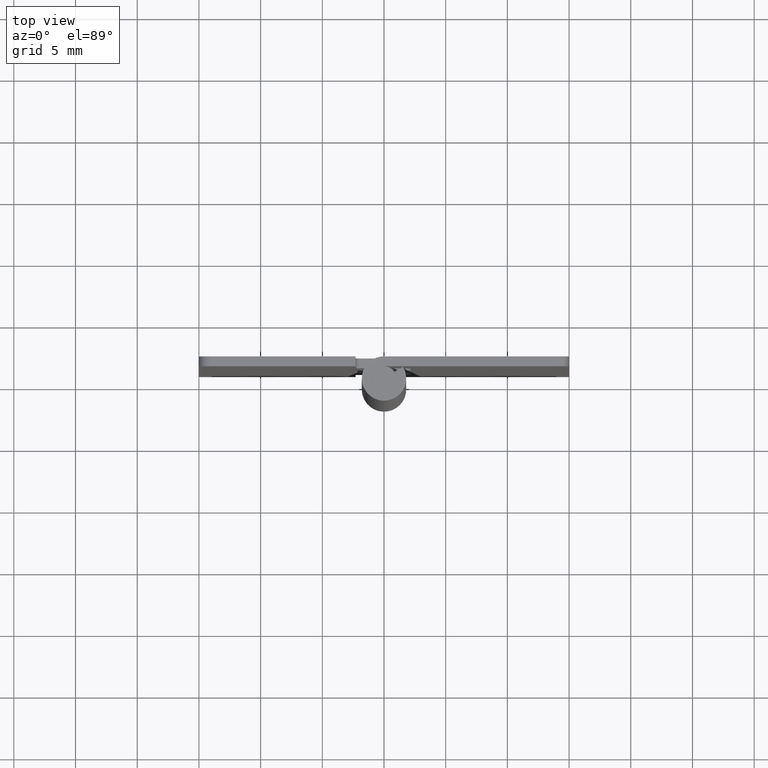
[diagram: clean part render]
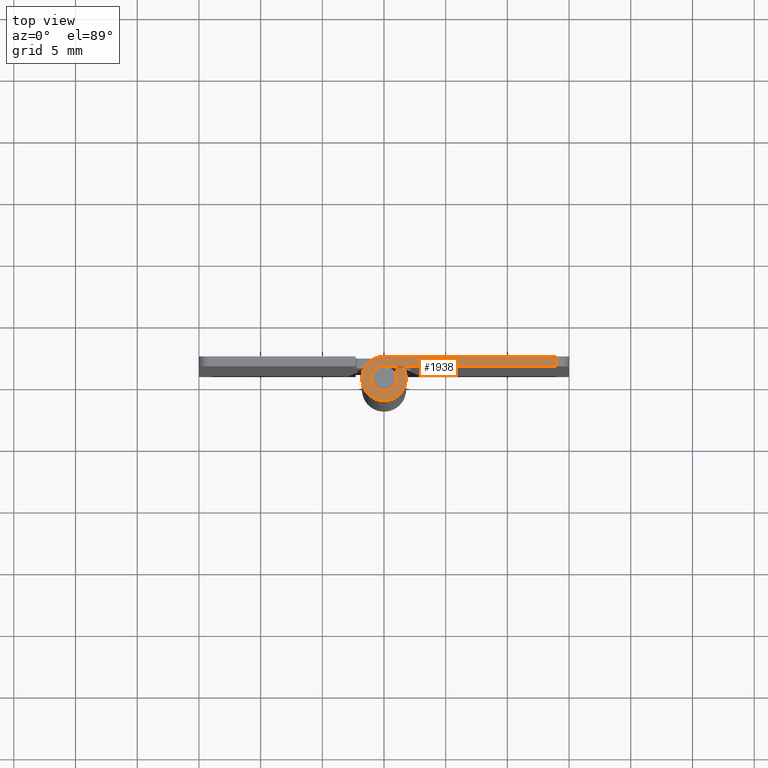
[diagram: same view with one face highlighted and labeled with its STEP entity id]
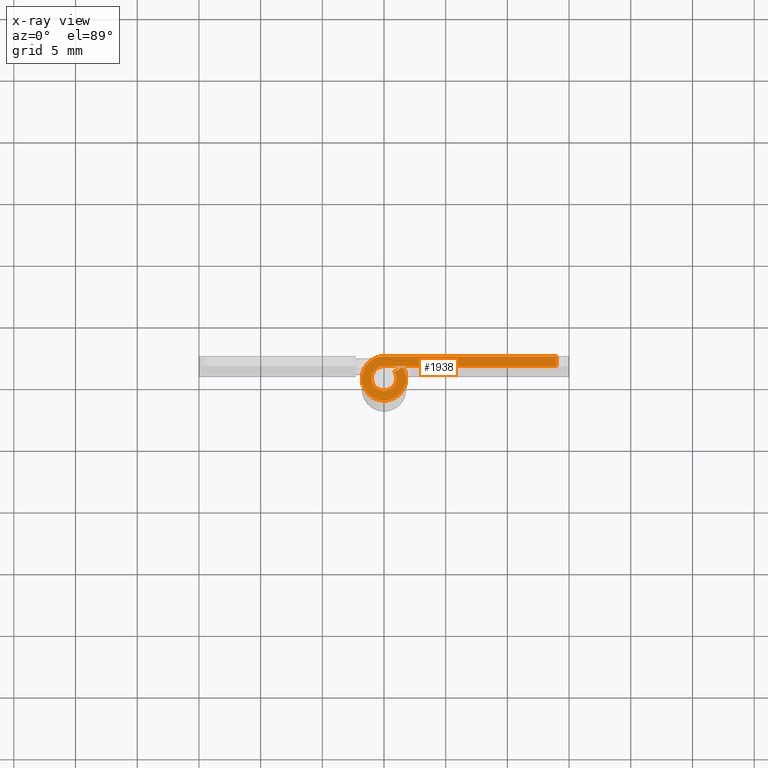
[diagram: x-ray of the same camera — body ghosted, the highlighted face saturated]
A machine part, top view. The second image highlights one B-rep face of the part: STEP entity #1938.
The next image is the same camera in x-ray: the body ghosted, the highlighted face saturated — about 0% of this face is hidden behind the body in this view.
In plain terms, the highlighted face is a freeform B-spline surface patch.
Its self-contained STEP definition (entity closure, byte-faithful):
#1357=CARTESIAN_POINT('',(14.0,1.799999000000000,50.999992999999897));
#1358=VERTEX_POINT('',#1357);
#1374=CARTESIAN_POINT('',(14.0,1.0,50.999992999999897));
#1375=VERTEX_POINT('',#1374);
#1376=CARTESIAN_POINT('',(14.0,1.0,50.999992999999897));
#1377=CARTESIAN_POINT('',(14.0,1.799999000000000,50.999992999999897));
#1378=QUASI_UNIFORM_CURVE('',1,(#1376,#1377),.UNSPECIFIED.,.F.,.U.);
#1379=EDGE_CURVE('',#1375,#1358,#1378,.T.);
#1869=CARTESIAN_POINT('',(-2.589133838442304,-1.979478709255516,50.999992999999897));
#1870=CARTESIAN_POINT('',(14.789206771333980,-1.979478709255516,50.999992999999897));
#1871=CARTESIAN_POINT('',(-2.589133838442304,1.979802805870698,50.999992999999897));
#1872=CARTESIAN_POINT('',(14.789206771333980,1.979802805870698,50.999992999999897));
#1873=B_SPLINE_SURFACE_WITH_KNOTS('',1,1,((#1869,#1871),(#1870,#1872)),.UNSPECIFIED.,.F.,.F.,.U.,(2,2),(2,2),(0.0,17.378340609776281),(0.0,3.959281515126214),.UNSPECIFIED.);
#1874=CARTESIAN_POINT('',(0.0,1.0,50.999992999999897));
#1875=VERTEX_POINT('',#1874);
#1876=CARTESIAN_POINT('',(14.0,1.0,50.999992999999897));
#1877=CARTESIAN_POINT('',(0.0,1.0,50.999992999999897));
#1878=QUASI_UNIFORM_CURVE('',1,(#1876,#1877),.UNSPECIFIED.,.F.,.U.);
#1879=EDGE_CURVE('',#1375,#1875,#1878,.T.);
#1880=ORIENTED_EDGE('',*,*,#1879,.F.);
#1881=ORIENTED_EDGE('',*,*,#1379,.T.);
#1882=CARTESIAN_POINT('',(0.001897366339661,1.799999000000000,50.999992999999897));
#1883=VERTEX_POINT('',#1882);
#1884=CARTESIAN_POINT('',(0.001897366339661,1.799999000000000,50.999992999999897));
#1885=CARTESIAN_POINT('',(14.0,1.799999000000000,50.999992999999897));
#1886=QUASI_UNIFORM_CURVE('',1,(#1884,#1885),.UNSPECIFIED.,.F.,.U.);
#1887=EDGE_CURVE('',#1883,#1358,#1886,.T.);
#1888=ORIENTED_EDGE('',*,*,#1887,.F.);
#1889=CARTESIAN_POINT('',(1.528888485142070,0.950000000000000,50.999992999999897));
#1890=VERTEX_POINT('',#1889);
#1891=CARTESIAN_POINT('',(1.528888485142066,0.949999999999999,50.999992999999897));
#1892=CARTESIAN_POINT('',(2.264178069144421,-0.233342924448529,50.999992999999897));
#1893=CARTESIAN_POINT('',(1.302999556723710,-1.241850294994455,50.999992999999897));
#1894=CARTESIAN_POINT('',(0.341821044302998,-2.250357665540383,50.999992999999897));
#1895=CARTESIAN_POINT('',(-0.875471818949307,-1.572752076528781,50.999992999999897));
#1896=CARTESIAN_POINT('',(-2.092764682201610,-0.895146487517180,50.999992999999897));
#1897=CARTESIAN_POINT('',(-1.742023403149212,0.453160526613295,50.999992999999897));
#1898=CARTESIAN_POINT('',(-1.391282124096815,1.801467540743771,50.999992999999897));
#1899=CARTESIAN_POINT('',(0.001897366339661,1.799998999999992,50.999992999999897));
#1907=(BOUNDED_CURVE()B_SPLINE_CURVE(2,(#1891,#1892,#1893,#1894,#1895,#1896,#1897,#1898,#1899),.UNSPECIFIED.,.F.,.U.)B_SPLINE_CURVE_WITH_KNOTS((3,2,2,2,3),(0.0,0.250000000000000,0.500000000000000,0.750000000000000,1.0),.UNSPECIFIED.)CURVE()GEOMETRIC_REPRESENTATION_ITEM()RATIONAL_B_SPLINE_CURVE((1.0,0.790801987648639,1.0,0.790801987648639,1.0,0.790801987648639,1.0,0.790801987648639,1.0))REPRESENTATION_ITEM(''));
#1908=EDGE_CURVE('',#1890,#1883,#1907,.T.);
#1909=ORIENTED_EDGE('',*,*,#1908,.F.);
#1910=CARTESIAN_POINT('',(0.849382491745593,0.527777777777776,50.999992999999897));
#1911=VERTEX_POINT('',#1910);
#1912=CARTESIAN_POINT('',(0.849382491745593,0.527777777777776,50.999992999999897));
#1913=CARTESIAN_POINT('',(1.528888485142070,0.950000000000000,50.999992999999897));
#1914=QUASI_UNIFORM_CURVE('',1,(#1912,#1913),.UNSPECIFIED.,.F.,.U.);
#1915=EDGE_CURVE('',#1911,#1890,#1914,.T.);
#1916=ORIENTED_EDGE('',*,*,#1915,.F.);
#1917=CARTESIAN_POINT('',(0.849382491745593,0.527777777777776,50.999992999999897));
#1918=CARTESIAN_POINT('',(1.257765516524185,-0.129456016023780,50.999992999999897));
#1919=CARTESIAN_POINT('',(0.724070426544635,-0.689726045182774,50.999992999999897));
#1920=CARTESIAN_POINT('',(0.190375336565086,-1.249996074341768,50.999992999999897));
#1921=CARTESIAN_POINT('',(-0.485912657903776,-0.874007373475126,50.999992999999897));
#1922=CARTESIAN_POINT('',(-1.162200652372637,-0.498018672608484,50.999992999999897));
#1923=CARTESIAN_POINT('',(-0.967989507555512,0.250990663695758,50.999992999999897));
#1924=CARTESIAN_POINT('',(-0.773778362738388,1.0,50.999992999999897));
#1925=CARTESIAN_POINT('',(0.0,1.0,50.999992999999897));
#1933=(BOUNDED_CURVE()B_SPLINE_CURVE(2,(#1917,#1918,#1919,#1920,#1921,#1922,#1923,#1924,#1925),.UNSPECIFIED.,.F.,.U.)B_SPLINE_CURVE_WITH_KNOTS((3,2,2,2,3),(0.0,0.250000000000000,0.500000000000000,0.750000000000000,1.0),.UNSPECIFIED.)CURVE()GEOMETRIC_REPRESENTATION_ITEM()RATIONAL_B_SPLINE_CURVE((1.0,0.790882628363956,1.0,0.790882628363956,1.0,0.790882628363956,1.0,0.790882628363956,1.0))REPRESENTATION_ITEM(''));
#1934=EDGE_CURVE('',#1911,#1875,#1933,.T.);
#1935=ORIENTED_EDGE('',*,*,#1934,.T.);
#1936=EDGE_LOOP('',(#1880,#1881,#1888,#1909,#1916,#1935));
#1937=FACE_OUTER_BOUND('',#1936,.T.);
#1938=ADVANCED_FACE('',(#1937),#1873,.T.);